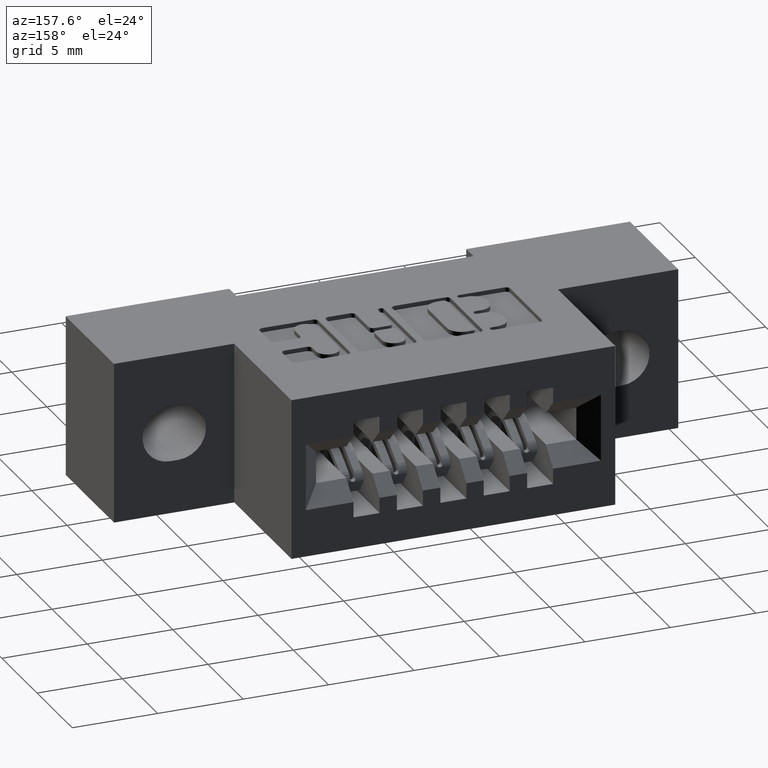
[diagram: clean part render]
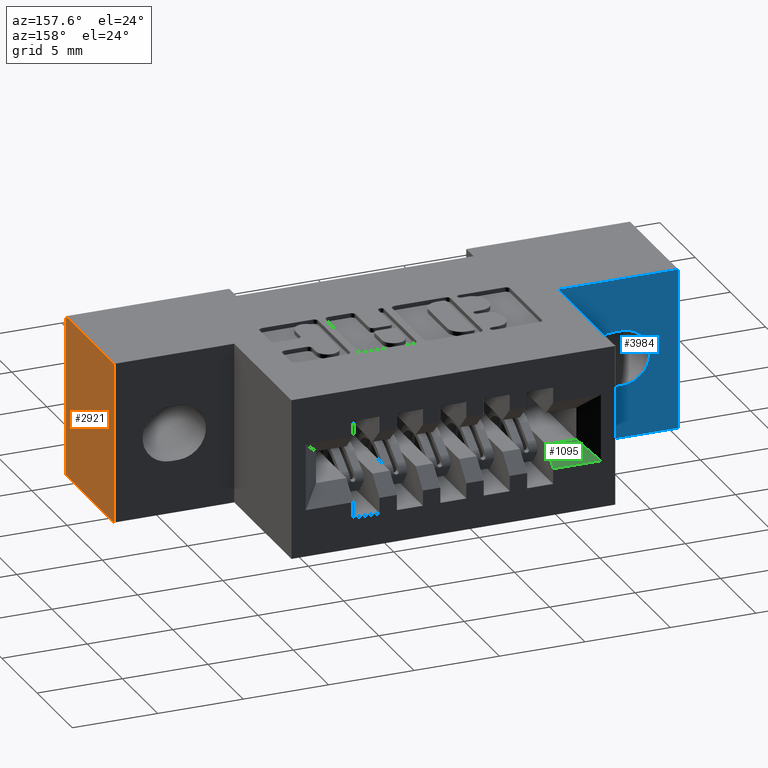
[diagram: same view with three faces highlighted in distinct colors, each labeled with its STEP entity id]
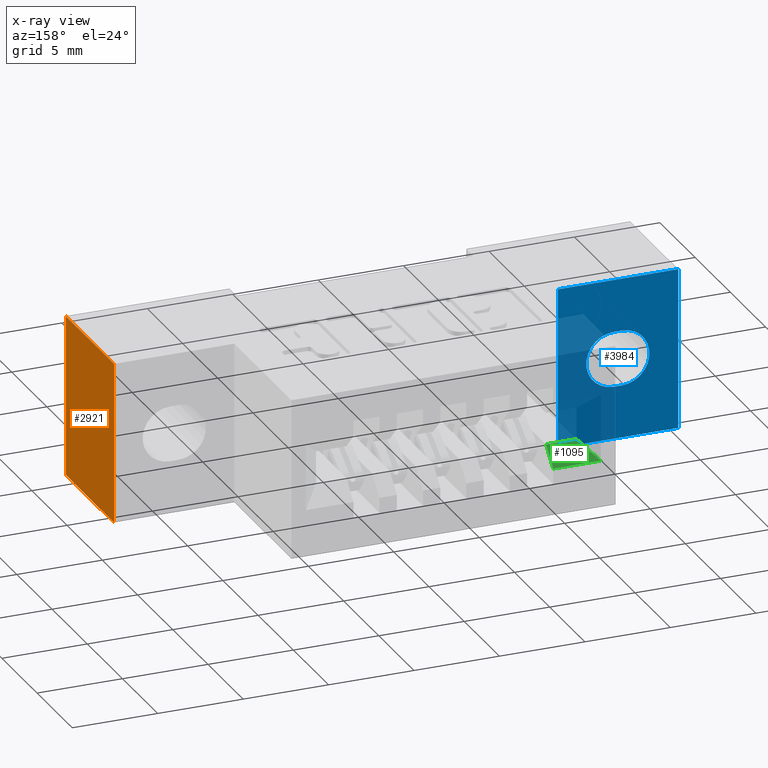
[diagram: x-ray of the same camera — body ghosted, the three highlighted faces saturated]
A machine part, auxiliary view with three faces highlighted in distinct colors.
The next image is the same camera in x-ray (body ghosted, the three faces saturated) — at least one of them is partly hidden behind the body in this view.
Their STEP definitions:

[orange] entity #2921 — the highlighted planar face has unit normal (-1, 0, 0).
#18 = CARTESIAN_POINT ( 'NONE',  ( 1.300000000000000000, 0.5899999999999999700, 0.0000000000000000000 ) ) ;
#93 = DIRECTION ( 'NONE',  ( -1.000000000000000000, 0.0000000000000000000, 0.0000000000000000000 ) ) ;
#108 = LINE ( 'NONE', #4717, #6485 ) ;
#1124 = EDGE_CURVE ( 'NONE', #3971, #5858, #6692, .T. ) ;
#1660 = DIRECTION ( 'NONE',  ( 0.0000000000000000000, 0.0000000000000000000, 1.000000000000000000 ) ) ;
#1757 = FACE_OUTER_BOUND ( 'NONE', #5469, .T. ) ;
#1846 = CARTESIAN_POINT ( 'NONE',  ( 1.300000000000000000, 0.2699999999999999600, 0.0000000000000000000 ) ) ;
#1903 = VECTOR ( 'NONE', #7759, 39.37007874015748100 ) ;
#1969 = CARTESIAN_POINT ( 'NONE',  ( 1.300000000000000000, 0.5899999999999999700, 0.0000000000000000000 ) ) ;
#1981 = CARTESIAN_POINT ( 'NONE',  ( 1.300000000000000000, 0.0000000000000000000, -0.3700000000000000000 ) ) ;
#2921 = ADVANCED_FACE ( 'NONE', ( #1757 ), #6184, .F. ) ;
#3065 = ORIENTED_EDGE ( 'NONE', *, *, #5451, .F. ) ;
#3187 = DIRECTION ( 'NONE',  ( -0.0000000000000000000, -1.000000000000000000, -0.0000000000000000000 ) ) ;
#3547 = AXIS2_PLACEMENT_3D ( 'NONE', #18, #93, #1660 ) ;
#3571 = CARTESIAN_POINT ( 'NONE',  ( 1.300000000000000000, 0.0000000000000000000, 0.0000000000000000000 ) ) ;
#3659 = CARTESIAN_POINT ( 'NONE',  ( 1.300000000000000000, 0.0000000000000000000, 0.0000000000000000000 ) ) ;
#3804 = CARTESIAN_POINT ( 'NONE',  ( 1.300000000000000000, 0.2699999999999999600, -0.3700000000000000000 ) ) ;
#3850 = EDGE_CURVE ( 'NONE', #6376, #5810, #7703, .T. ) ;
#3971 = VERTEX_POINT ( 'NONE', #3571 ) ;
#4041 = LINE ( 'NONE', #1969, #7153 ) ;
#4361 = ORIENTED_EDGE ( 'NONE', *, *, #3850, .F. ) ;
#4418 = DIRECTION ( 'NONE',  ( -0.0000000000000000000, -0.0000000000000000000, -1.000000000000000000 ) ) ;
#4494 = CARTESIAN_POINT ( 'NONE',  ( 1.300000000000000000, 0.2699999999999999600, -0.3700000000000000000 ) ) ;
#4717 = CARTESIAN_POINT ( 'NONE',  ( 1.300000000000000000, 0.5899999999999999700, -0.3700000000000000000 ) ) ;
#5374 = DIRECTION ( 'NONE',  ( -0.0000000000000000000, -1.000000000000000000, -0.0000000000000000000 ) ) ;
#5451 = EDGE_CURVE ( 'NONE', #5810, #5858, #108, .T. ) ;
#5469 = EDGE_LOOP ( 'NONE', ( #4361, #7636, #6235, #3065 ) ) ;
#5810 = VERTEX_POINT ( 'NONE', #3804 ) ;
#5858 = VERTEX_POINT ( 'NONE', #1981 ) ;
#6184 = PLANE ( 'NONE',  #3547 ) ;
#6235 = ORIENTED_EDGE ( 'NONE', *, *, #1124, .T. ) ;
#6303 = VECTOR ( 'NONE', #4418, 39.37007874015748100 ) ;
#6376 = VERTEX_POINT ( 'NONE', #1846 ) ;
#6485 = VECTOR ( 'NONE', #5374, 39.37007874015748100 ) ;
#6692 = LINE ( 'NONE', #3659, #1903 ) ;
#7008 = EDGE_CURVE ( 'NONE', #6376, #3971, #4041, .T. ) ;
#7153 = VECTOR ( 'NONE', #3187, 39.37007874015748100 ) ;
#7636 = ORIENTED_EDGE ( 'NONE', *, *, #7008, .T. ) ;
#7703 = LINE ( 'NONE', #4494, #6303 ) ;
#7759 = DIRECTION ( 'NONE',  ( 0.0000000000000000000, 0.0000000000000000000, -1.000000000000000000 ) ) ;

[blue] entity #3984 — the highlighted planar face has unit normal (0, 1, 0).
#27 = CARTESIAN_POINT ( 'NONE',  ( -2.134256245050205600E-018, 0.2699999999999999600, 0.0000000000000000000 ) ) ;
#225 = DIRECTION ( 'NONE',  ( 0.0000000000000000000, 0.0000000000000000000, 1.000000000000000000 ) ) ;
#234 = DIRECTION ( 'NONE',  ( 0.0000000000000000000, 1.000000000000000000, 0.0000000000000000000 ) ) ;
#261 = CARTESIAN_POINT ( 'NONE',  ( 0.1299999999999994200, 0.2699999999999999600, -0.1850000000000000000 ) ) ;
#322 = EDGE_LOOP ( 'NONE', ( #2879, #7925, #5248, #705 ) ) ;
#343 = DIRECTION ( 'NONE',  ( 1.000000000000000000, 0.0000000000000000000, -6.123233995736768500E-017 ) ) ;
#705 = ORIENTED_EDGE ( 'NONE', *, *, #4689, .T. ) ;
#1089 = EDGE_CURVE ( 'NONE', #5370, #5309, #2081, .T. ) ;
#1247 = VECTOR ( 'NONE', #1318, 39.37007874015748100 ) ;
#1318 = DIRECTION ( 'NONE',  ( -1.000000000000000000, -0.0000000000000000000, -0.0000000000000000000 ) ) ;
#1473 = VERTEX_POINT ( 'NONE', #6710 ) ;
#1799 = VERTEX_POINT ( 'NONE', #4754 ) ;
#2073 = VECTOR ( 'NONE', #4042, 39.37007874015748100 ) ;
#2081 = LINE ( 'NONE', #3424, #5233 ) ;
#2361 = VECTOR ( 'NONE', #343, 39.37007874015748100 ) ;
#2879 = ORIENTED_EDGE ( 'NONE', *, *, #5392, .T. ) ;
#3083 = ORIENTED_EDGE ( 'NONE', *, *, #5281, .F. ) ;
#3114 = DIRECTION ( 'NONE',  ( -1.000000000000000000, -0.0000000000000000000, -0.0000000000000000000 ) ) ;
#3143 = CIRCLE ( 'NONE', #6034, 0.06399999999999948800 ) ;
#3260 = VERTEX_POINT ( 'NONE', #5715 ) ;
#3308 = DIRECTION ( 'NONE',  ( -0.0000000000000000000, -0.0000000000000000000, -1.000000000000000000 ) ) ;
#3324 = CARTESIAN_POINT ( 'NONE',  ( 0.1480000000000001600, 0.2699999999999999600, -0.2489999999999998300 ) ) ;
#3388 = CARTESIAN_POINT ( 'NONE',  ( -4.695363739110452100E-017, 0.2699999999999999600, -0.3700000000000000000 ) ) ;
#3409 = EDGE_CURVE ( 'NONE', #1473, #7206, #3143, .T. ) ;
#3424 = CARTESIAN_POINT ( 'NONE',  ( 0.2770000000000000200, 0.2699999999999999600, -0.3700000000000000000 ) ) ;
#3437 = CARTESIAN_POINT ( 'NONE',  ( -4.695363739110452100E-017, 0.2699999999999999600, -0.3700000000000000000 ) ) ;
#3574 = ORIENTED_EDGE ( 'NONE', *, *, #7568, .F. ) ;
#3644 = FACE_BOUND ( 'NONE', #7403, .T. ) ;
#3729 = LINE ( 'NONE', #3388, #2073 ) ;
#3984 = ADVANCED_FACE ( 'NONE', ( #3644, #6960 ), #4555, .T. ) ;
#4042 = DIRECTION ( 'NONE',  ( 1.211334625569035700E-016, 0.0000000000000000000, 1.000000000000000000 ) ) ;
#4122 = EDGE_CURVE ( 'NONE', #5975, #3260, #7429, .T. ) ;
#4543 = CARTESIAN_POINT ( 'NONE',  ( -2.134256245050197900E-018, 0.2699999999999999600, -4.642881775149349100E-049 ) ) ;
#4555 = PLANE ( 'NONE',  #6144 ) ;
#4689 = EDGE_CURVE ( 'NONE', #5309, #1799, #5346, .T. ) ;
#4754 = CARTESIAN_POINT ( 'NONE',  ( -4.695363739110452100E-017, 0.2699999999999999600, -0.3700000000000000000 ) ) ;
#4911 = DIRECTION ( 'NONE',  ( 0.0000000000000000000, -0.0000000000000000000, 1.000000000000000000 ) ) ;
#4938 = DIRECTION ( 'NONE',  ( -0.0000000000000000000, 1.000000000000000000, 0.0000000000000000000 ) ) ;
#4982 = AXIS2_PLACEMENT_3D ( 'NONE', #261, #234, #225 ) ;
#5018 = CARTESIAN_POINT ( 'NONE',  ( 0.1299999999999994200, 0.2699999999999999600, -0.2489999999999998300 ) ) ;
#5233 = VECTOR ( 'NONE', #3308, 39.37007874015748100 ) ;
#5248 = ORIENTED_EDGE ( 'NONE', *, *, #1089, .T. ) ;
#5273 = CARTESIAN_POINT ( 'NONE',  ( -2.134256245050205600E-018, 0.2699999999999999600, 0.0000000000000000000 ) ) ;
#5281 = EDGE_CURVE ( 'NONE', #3260, #1473, #7790, .T. ) ;
#5290 = CARTESIAN_POINT ( 'NONE',  ( 0.2770000000000000200, 0.2699999999999999600, -1.696135816819084800E-017 ) ) ;
#5309 = VERTEX_POINT ( 'NONE', #5830 ) ;
#5346 = LINE ( 'NONE', #3437, #5532 ) ;
#5370 = VERTEX_POINT ( 'NONE', #5290 ) ;
#5392 = EDGE_CURVE ( 'NONE', #1799, #7466, #3729, .T. ) ;
#5532 = VECTOR ( 'NONE', #3114, 39.37007874015748100 ) ;
#5689 = ORIENTED_EDGE ( 'NONE', *, *, #4122, .F. ) ;
#5715 = CARTESIAN_POINT ( 'NONE',  ( 0.1299999999999999800, 0.2699999999999999600, -0.1210000000000008400 ) ) ;
#5721 = LINE ( 'NONE', #5273, #2361 ) ;
#5830 = CARTESIAN_POINT ( 'NONE',  ( 0.2770000000000000200, 0.2699999999999999600, -0.3700000000000000000 ) ) ;
#5851 = CARTESIAN_POINT ( 'NONE',  ( 0.1299999999999994200, 0.2699999999999999600, -0.2489999999999998300 ) ) ;
#5975 = VERTEX_POINT ( 'NONE', #5851 ) ;
#6034 = AXIS2_PLACEMENT_3D ( 'NONE', #6889, #6819, #6940 ) ;
#6144 = AXIS2_PLACEMENT_3D ( 'NONE', #4543, #4938, #4911 ) ;
#6189 = LINE ( 'NONE', #5018, #1247 ) ;
#6198 = VECTOR ( 'NONE', #7624, 39.37007874015748100 ) ;
#6431 = CARTESIAN_POINT ( 'NONE',  ( 0.1299999999999999800, 0.2699999999999999600, -0.1210000000000008400 ) ) ;
#6537 = ORIENTED_EDGE ( 'NONE', *, *, #3409, .F. ) ;
#6574 = EDGE_CURVE ( 'NONE', #7466, #5370, #5721, .T. ) ;
#6710 = CARTESIAN_POINT ( 'NONE',  ( 0.1479999999999996300, 0.2699999999999999600, -0.1210000000000005100 ) ) ;
#6819 = DIRECTION ( 'NONE',  ( 0.0000000000000000000, 1.000000000000000000, 0.0000000000000000000 ) ) ;
#6889 = CARTESIAN_POINT ( 'NONE',  ( 0.1479999999999996300, 0.2699999999999999600, -0.1850000000000000000 ) ) ;
#6940 = DIRECTION ( 'NONE',  ( 0.0000000000000000000, 0.0000000000000000000, 1.000000000000000000 ) ) ;
#6960 = FACE_OUTER_BOUND ( 'NONE', #322, .T. ) ;
#7206 = VERTEX_POINT ( 'NONE', #3324 ) ;
#7403 = EDGE_LOOP ( 'NONE', ( #5689, #3574, #6537, #3083 ) ) ;
#7429 = CIRCLE ( 'NONE', #4982, 0.06399999999999948800 ) ;
#7466 = VERTEX_POINT ( 'NONE', #27 ) ;
#7568 = EDGE_CURVE ( 'NONE', #7206, #5975, #6189, .T. ) ;
#7624 = DIRECTION ( 'NONE',  ( 1.000000000000000000, 0.0000000000000000000, 0.0000000000000000000 ) ) ;
#7790 = LINE ( 'NONE', #6431, #6198 ) ;
#7925 = ORIENTED_EDGE ( 'NONE', *, *, #6574, .T. ) ;

[green] entity #1095 — the highlighted planar face has unit normal (0, -0.7071, -0.7071).
#53 = VECTOR ( 'NONE', #2420, 39.37007874015748100 ) ;
#260 = DIRECTION ( 'NONE',  ( -0.0000000000000000000, -0.7071067811865462400, 0.7071067811865486800 ) ) ;
#328 = LINE ( 'NONE', #5878, #6310 ) ;
#413 = VECTOR ( 'NONE', #260, 39.37007874015748900 ) ;
#621 = LINE ( 'NONE', #5323, #6972 ) ;
#779 = AXIS2_PLACEMENT_3D ( 'NONE', #1111, #3374, #3412 ) ;
#808 = VERTEX_POINT ( 'NONE', #4466 ) ;
#995 = PLANE ( 'NONE',  #779 ) ;
#1095 = ADVANCED_FACE ( 'NONE', ( #6868 ), #995, .F. ) ;
#1111 = CARTESIAN_POINT ( 'NONE',  ( 0.3499999999999999800, 0.5500000000000000400, -0.2220000000000002000 ) ) ;
#1147 = ORIENTED_EDGE ( 'NONE', *, *, #3482, .T. ) ;
#1327 = EDGE_CURVE ( 'NONE', #1416, #5053, #6956, .T. ) ;
#1416 = VERTEX_POINT ( 'NONE', #3111 ) ;
#1585 = EDGE_LOOP ( 'NONE', ( #4795, #2325, #1147, #7231 ) ) ;
#1804 = CARTESIAN_POINT ( 'NONE',  ( 0.4200000000000000400, 0.5500000000000000400, -0.2220000000000002000 ) ) ;
#1853 = LINE ( 'NONE', #2619, #53 ) ;
#2030 = VERTEX_POINT ( 'NONE', #3204 ) ;
#2325 = ORIENTED_EDGE ( 'NONE', *, *, #6004, .F. ) ;
#2420 = DIRECTION ( 'NONE',  ( -1.000000000000000000, 0.0000000000000000000, 0.0000000000000000000 ) ) ;
#2619 = CARTESIAN_POINT ( 'NONE',  ( 0.3499999999999999800, 0.5500000000000000400, -0.2220000000000002000 ) ) ;
#2704 = EDGE_CURVE ( 'NONE', #5053, #2030, #1853, .T. ) ;
#3111 = CARTESIAN_POINT ( 'NONE',  ( 0.4200000000000000400, 0.5899999999999999700, -0.2620000000000002900 ) ) ;
#3204 = CARTESIAN_POINT ( 'NONE',  ( 0.3499999999999999800, 0.5500000000000000400, -0.2220000000000002000 ) ) ;
#3350 = CARTESIAN_POINT ( 'NONE',  ( 0.4200000000000000400, 0.5499999999999998200, -0.2220000000000001100 ) ) ;
#3374 = DIRECTION ( 'NONE',  ( 0.0000000000000000000, -0.7071067811865487900, -0.7071067811865463500 ) ) ;
#3412 = DIRECTION ( 'NONE',  ( 0.0000000000000000000, 0.7071067811865462400, -0.7071067811865486800 ) ) ;
#3482 = EDGE_CURVE ( 'NONE', #808, #2030, #621, .T. ) ;
#3722 = DIRECTION ( 'NONE',  ( 0.5773502691896264000, -0.5773502691896244000, 0.5773502691896264000 ) ) ;
#4466 = CARTESIAN_POINT ( 'NONE',  ( 0.3099999999999998300, 0.5899999999999999700, -0.2620000000000002900 ) ) ;
#4630 = DIRECTION ( 'NONE',  ( 1.000000000000000000, 0.0000000000000000000, 0.0000000000000000000 ) ) ;
#4795 = ORIENTED_EDGE ( 'NONE', *, *, #1327, .F. ) ;
#5053 = VERTEX_POINT ( 'NONE', #3350 ) ;
#5323 = CARTESIAN_POINT ( 'NONE',  ( 0.3499999999999999800, 0.5500000000000000400, -0.2220000000000002000 ) ) ;
#5878 = CARTESIAN_POINT ( 'NONE',  ( 0.0000000000000000000, 0.5899999999999999700, -0.2620000000000002900 ) ) ;
#6004 = EDGE_CURVE ( 'NONE', #808, #1416, #328, .T. ) ;
#6310 = VECTOR ( 'NONE', #4630, 39.37007874015748100 ) ;
#6868 = FACE_OUTER_BOUND ( 'NONE', #1585, .T. ) ;
#6956 = LINE ( 'NONE', #1804, #413 ) ;
#6972 = VECTOR ( 'NONE', #3722, 39.37007874015748900 ) ;
#7231 = ORIENTED_EDGE ( 'NONE', *, *, #2704, .F. ) ;